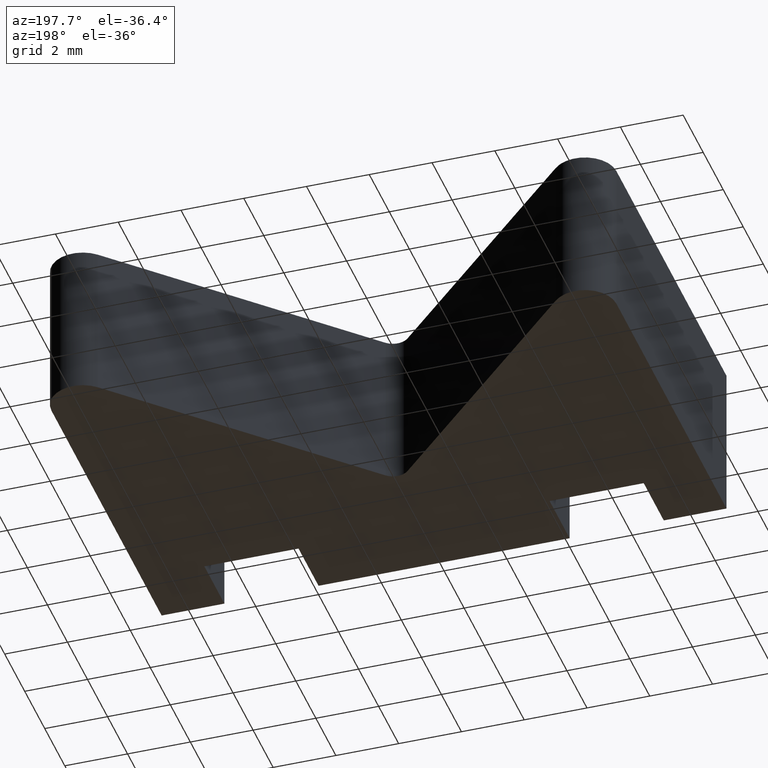
[diagram: clean part render]
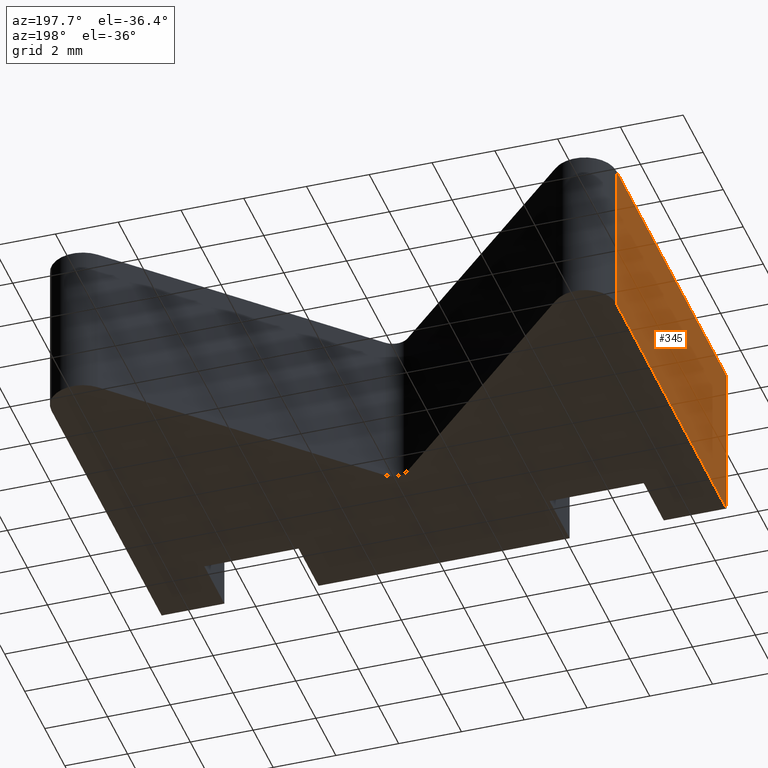
[diagram: same view with one face highlighted and labeled with its STEP entity id]
A machine part, auxiliary view. The second image highlights one B-rep face of the part: STEP entity #345.
In plain terms, the highlighted planar face has unit normal (-1, 0, 0).
Its self-contained STEP definition (entity closure, byte-faithful):
#28=FACE_OUTER_BOUND('',#46,.T.);
#46=EDGE_LOOP('',(#273,#274,#275,#276));
#71=LINE('',#517,#113);
#90=LINE('',#560,#132);
#91=LINE('',#563,#133);
#92=LINE('',#564,#134);
#113=VECTOR('',#415,10.);
#132=VECTOR('',#456,10.);
#133=VECTOR('',#459,10.);
#134=VECTOR('',#460,10.);
#155=VERTEX_POINT('',#514);
#156=VERTEX_POINT('',#516);
#169=VERTEX_POINT('',#558);
#170=VERTEX_POINT('',#562);
#187=EDGE_CURVE('',#156,#155,#71,.T.);
#209=EDGE_CURVE('',#169,#155,#90,.T.);
#210=EDGE_CURVE('',#169,#170,#91,.T.);
#211=EDGE_CURVE('',#170,#156,#92,.T.);
#273=ORIENTED_EDGE('',*,*,#210,.T.);
#274=ORIENTED_EDGE('',*,*,#211,.T.);
#275=ORIENTED_EDGE('',*,*,#187,.T.);
#276=ORIENTED_EDGE('',*,*,#209,.F.);
#330=PLANE('',#389);
#345=ADVANCED_FACE('',(#28),#330,.T.);
#389=AXIS2_PLACEMENT_3D('',#561,#457,#458);
#415=DIRECTION('',(0.,-1.,0.));
#456=DIRECTION('',(0.,0.,-1.));
#457=DIRECTION('center_axis',(-1.,0.,0.));
#458=DIRECTION('ref_axis',(0.,0.,1.));
#459=DIRECTION('',(0.,1.,0.));
#460=DIRECTION('',(0.,0.,-1.));
#514=CARTESIAN_POINT('',(-9.,-2.,-2.5));
#516=CARTESIAN_POINT('',(-9.,9.,-2.5));
#517=CARTESIAN_POINT('',(-9.,-2.,-2.5));
#558=CARTESIAN_POINT('',(-9.,-2.,2.5));
#560=CARTESIAN_POINT('',(-9.,-2.,0.));
#561=CARTESIAN_POINT('Origin',(-9.,-2.,0.));
#562=CARTESIAN_POINT('',(-9.,9.,2.5));
#563=CARTESIAN_POINT('',(-9.,-2.,2.5));
#564=CARTESIAN_POINT('',(-9.,9.,0.));